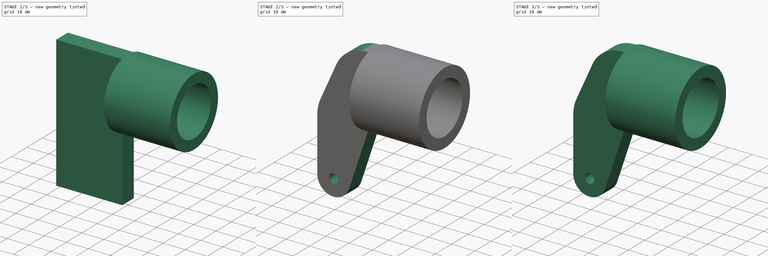
[diagram: build sequence overview — one tinted view per stage of 3, left to right]
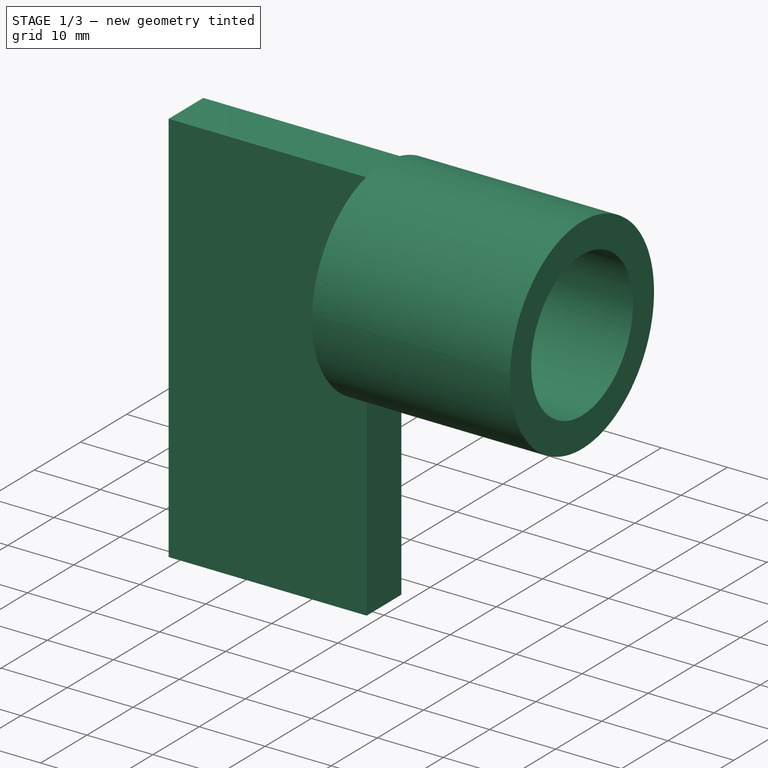
[diagram: stage 1 of 3 — iso view after this stage's code; geometry added in this stage tinted green]
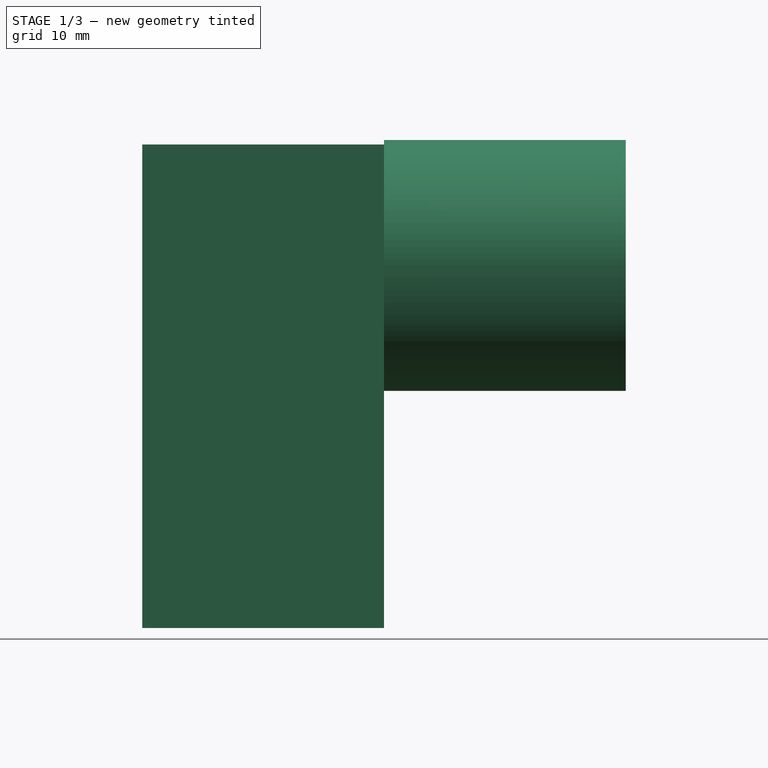
[diagram: stage 1 of 3 — front view after this stage's code; geometry added in this stage tinted green]
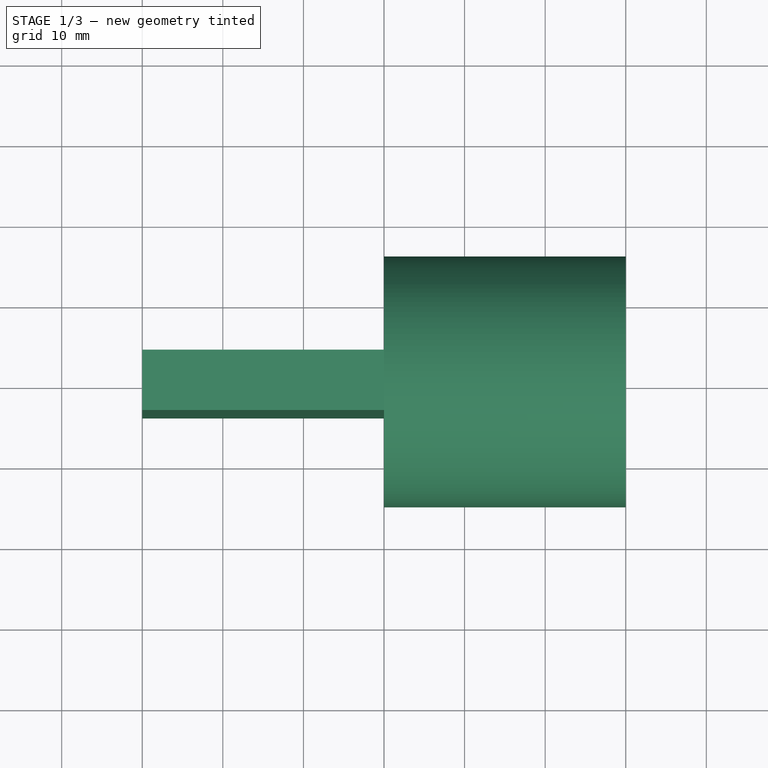
[diagram: stage 1 of 3 — top view after this stage's code; geometry added in this stage tinted green]
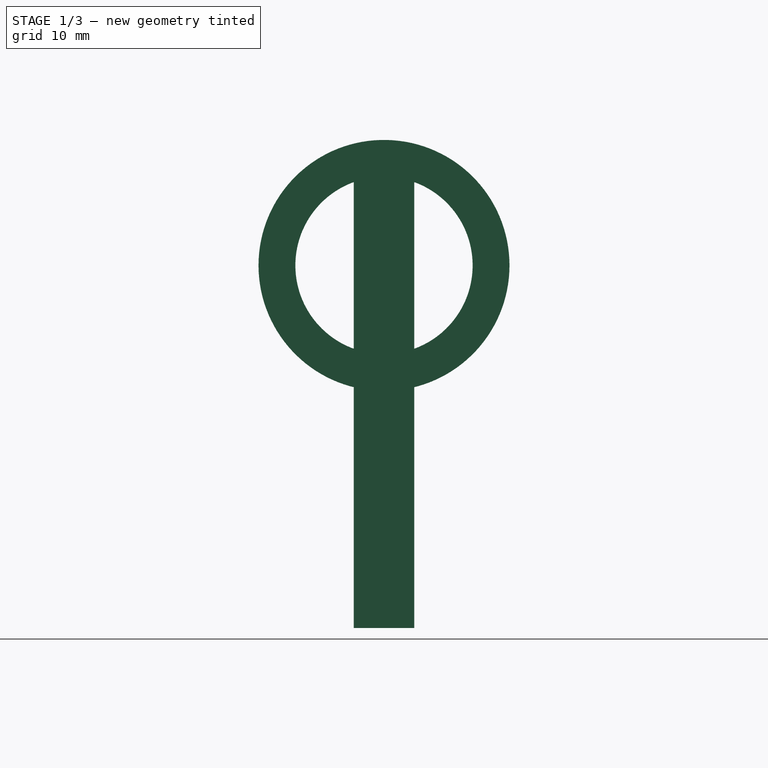
[diagram: stage 1 of 3 — right view after this stage's code; geometry added in this stage tinted green]
FCSTD DOCUMENT  (FreeCAD 0.18.3R)
Label: topcap
License: All rights reserved
LicenseURL: http://en.wikipedia.org/wiki/All_rights_reserved
objects: Part::Extrusion×3, Sketcher::SketchObject×2, Part::Part2DObjectPython×1, Part::MultiCommon×1, Part::MultiFuse×1, PartDesign::FeatureBase×1, PartDesign::Body×1
note: 10 computed .brp shape members not serialized (recipe doc carries the construction recipe); baked Part::Feature solids carry a one-line shape summary decoded from their .brp

FEATURE [Part::Extrusion] Extrude003
  Base = -> Rectangle001
  Dir = (0,0,60)
  DirMode = 0
  FaceMakerClass = Part::FaceMakerExtrusion
  LengthFwd = 0
  LengthRev = 0
  Placement = pos=(1.33e-14,0,-30) rot=(0,0,1;0rad)
  Solid = false
  Symmetric = false
FEATURE [Sketcher::SketchObject] Sketch001
  MapMode = 5
  Placement = pos=(0,0,0) rot=(0.57735,0.57735,0.57735;2.0944rad)
  Support = -> [YZ_Plane]
  sketch-geometry (2):
    g0: Circle CenterX=0 CenterY=0 CenterZ=0 NormalX=0 NormalY=0 NormalZ=1 AngleXU=0 Radius=11
    g1: Circle CenterX=0 CenterY=0 CenterZ=0 NormalX=0 NormalY=0 NormalZ=1 AngleXU=0 Radius=15.5727
  constraints (3):
    c: Coincident(g0,g-1)
    c: Diameter(g0) = 22
    c: Coincident(g1,g0)
FEATURE [Part::Extrusion] Extrude
  Base = -> Sketch001
  Dir = (1,0,0)
  DirMode = 0
  FaceMakerClass = Part::FaceMakerBullseye
  LengthFwd = 30
  LengthRev = 0
  Solid = true
  Symmetric = false
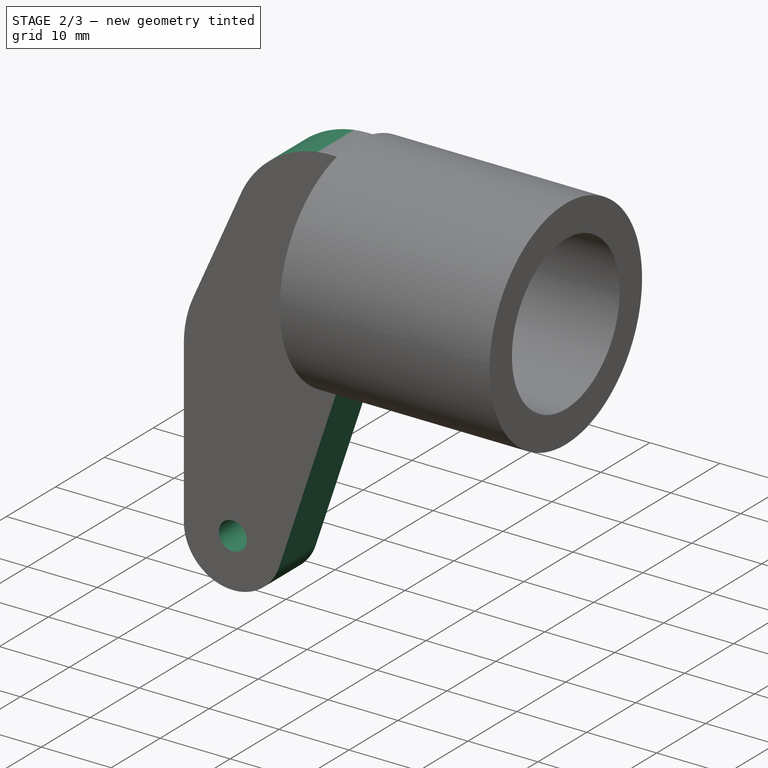
[diagram: stage 2 of 3 — iso view after this stage's code; geometry added in this stage tinted green]
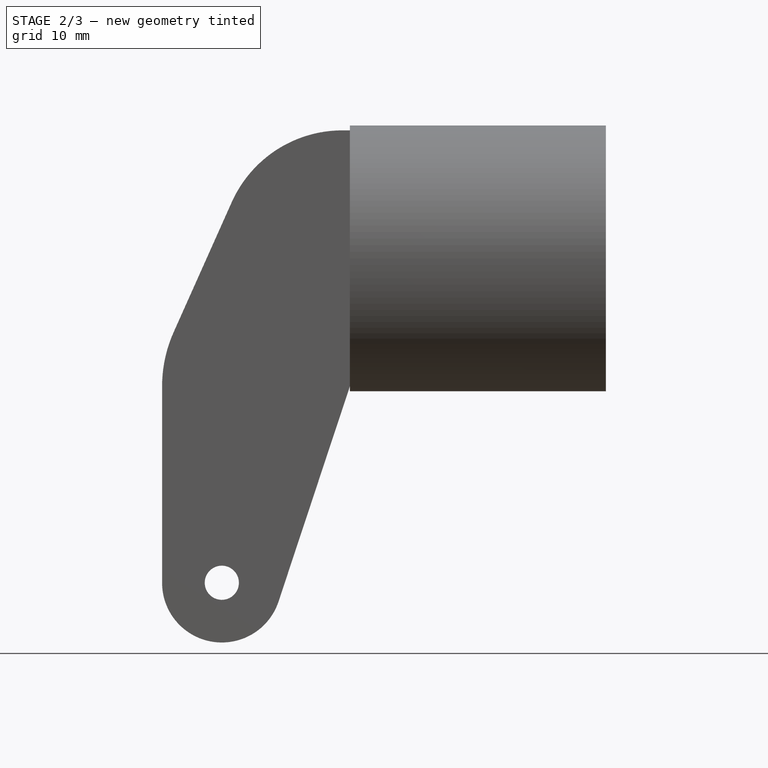
[diagram: stage 2 of 3 — front view after this stage's code; geometry added in this stage tinted green]
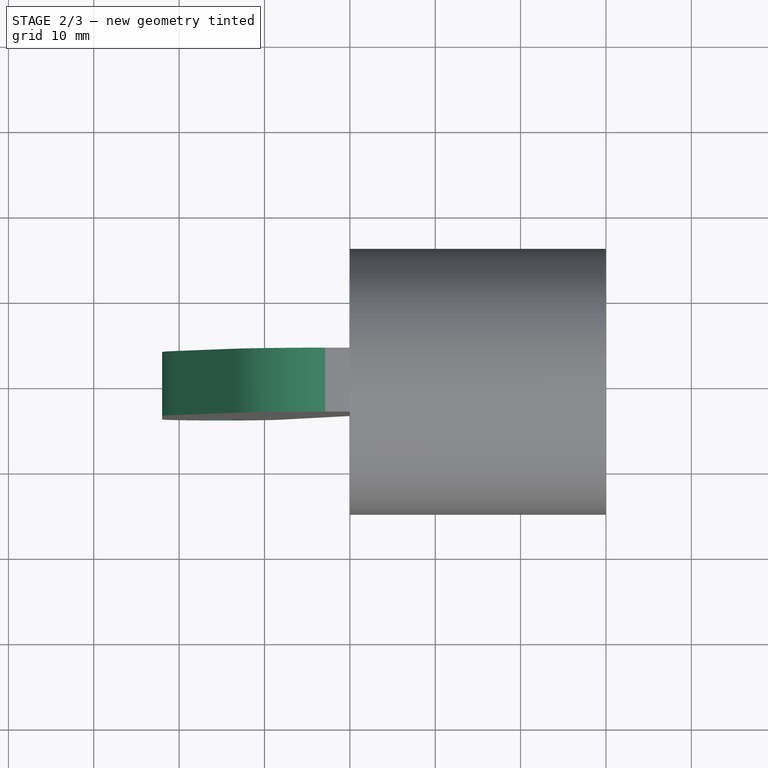
[diagram: stage 2 of 3 — top view after this stage's code; geometry added in this stage tinted green]
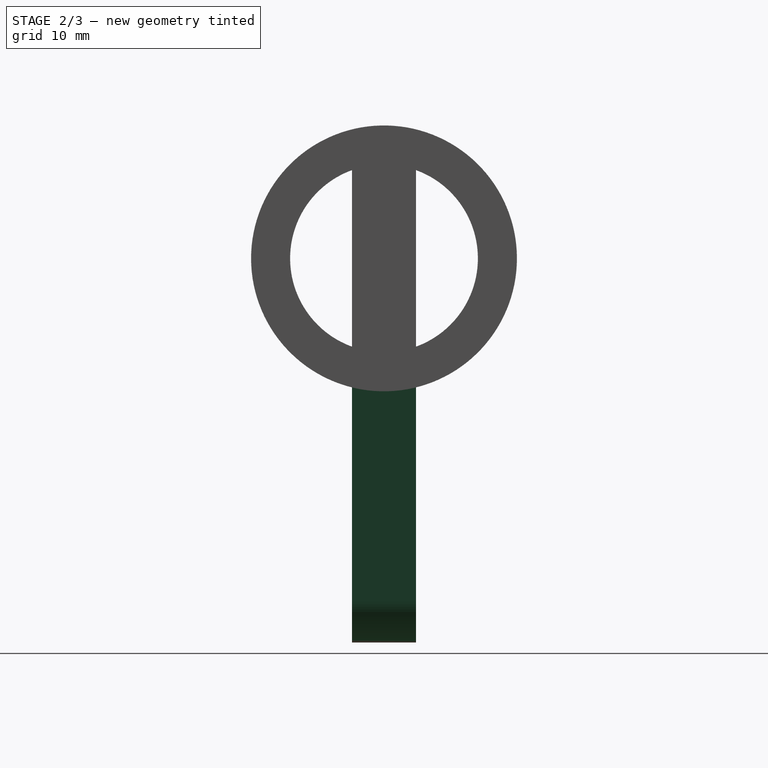
[diagram: stage 2 of 3 — right view after this stage's code; geometry added in this stage tinted green]
FEATURE [Part::Part2DObjectPython] Rectangle001  label="cutout"  # Draft 2D object (typed FeaturePython)
  ChamferSize = 0
  Columns = 1
  FilletRadius = 0
  Height = 7.5
  Length = 30
  MakeFace = true
  MapMode = 5
  Placement = pos=(-30,-3.75,-15) rot=(0,0,1;0rad)
  Rows = 1
FEATURE [Sketcher::SketchObject] Sketch
  MapMode = 5
  Placement = pos=(0,0,-15) rot=(1,0,0;1.5708rad)
  sketch-geometry (10):
    g0: LineSegment StartX=-22 StartY=-23 StartZ=0 EndX=-22 EndY=0 EndZ=0
    g1: LineSegment StartX=-8.35564 StartY=-25.2028 StartZ=0 EndX=0 EndY=0 EndZ=0
    g2: LineSegment [constr] StartX=-22 StartY=0 StartZ=0 EndX=0 EndY=0 EndZ=0
    g3: Circle CenterX=-15 CenterY=-23 CenterZ=0 NormalX=0 NormalY=0 NormalZ=1 AngleXU=0 Radius=2
    g4: ArcOfCircle CenterX=-15 CenterY=-23 CenterZ=0 NormalX=0 NormalY=0 NormalZ=1 AngleXU=0 Radius=7 StartAngle=3.14159 EndAngle=5.96305
    g5: LineSegment StartX=-20.6449 StartY=6.35305 StartZ=0 EndX=-13.8342 EndY=21.5924 EndZ=0
    g6: LineSegment StartX=0 StartY=30 StartZ=0 EndX=0 EndY=0 EndZ=0
    g7: LineSegment StartX=-0.867585 StartY=30 StartZ=0 EndX=0 EndY=30 EndZ=0
    g8: ArcOfCircle CenterX=-0.867585 CenterY=15.7974 CenterZ=0 NormalX=0 NormalY=0 NormalZ=1 AngleXU=0 Radius=14.2026 StartAngle=1.5708 EndAngle=2.7213
    g9: ArcOfCircle CenterX=-6.42973 CenterY=-1.9e-15 CenterZ=0 NormalX=0 NormalY=0 NormalZ=1 AngleXU=0 Radius=15.5703 StartAngle=2.7213 EndAngle=3.14159
  constraints (21):
    c: Coincident(g1,g2)
    c: Radius(g3) = 2
    c: Radius(g4) = 7
    c: Coincident(g3,g4)
    c: Tangent(g0,g4) = 1.5708
    c: Tangent(g1,g4) = -1.5708
    c: Coincident(g1,g-1)
    c: Distance(g3,g2) = 23
    c: Horizontal(g2)
    c: Vertical(g0)
    c: Distance(g2) = 22
    c: Coincident(g6,g1)
    c: Vertical(g6)
    c: Distance(g6) = 30
    c: Coincident(g7,g6)
    c: Horizontal(g7)
    c: Tangent(g5,g8) = 1.5708
    c: Tangent(g7,g8) = 1.5708
    c: Tangent(g0,g9) = 1.5708
    c: Tangent(g5,g9) = 1.5708
    c: Coincident(g0,g2)
FEATURE [Part::Extrusion] Extrude002
  Base = -> Sketch
  Dir = (0,15,0)
  DirMode = 0
  FaceMakerClass = Part::FaceMakerExtrusion
  LengthFwd = 0
  LengthRev = 0
  Placement = pos=(0,-7.5,0) rot=(0,0,1;0rad)
  Solid = true
  Symmetric = false
FEATURE [Part::MultiCommon] Common
  Shapes = -> [Extrude002,Extrude003]
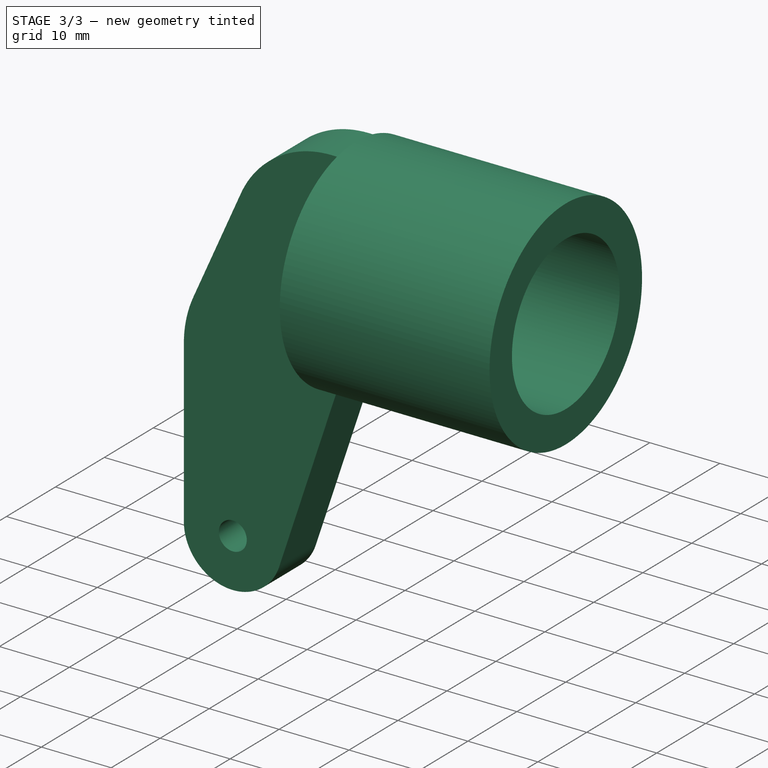
[diagram: stage 3 of 3 — iso view after this stage's code; geometry added in this stage tinted green]
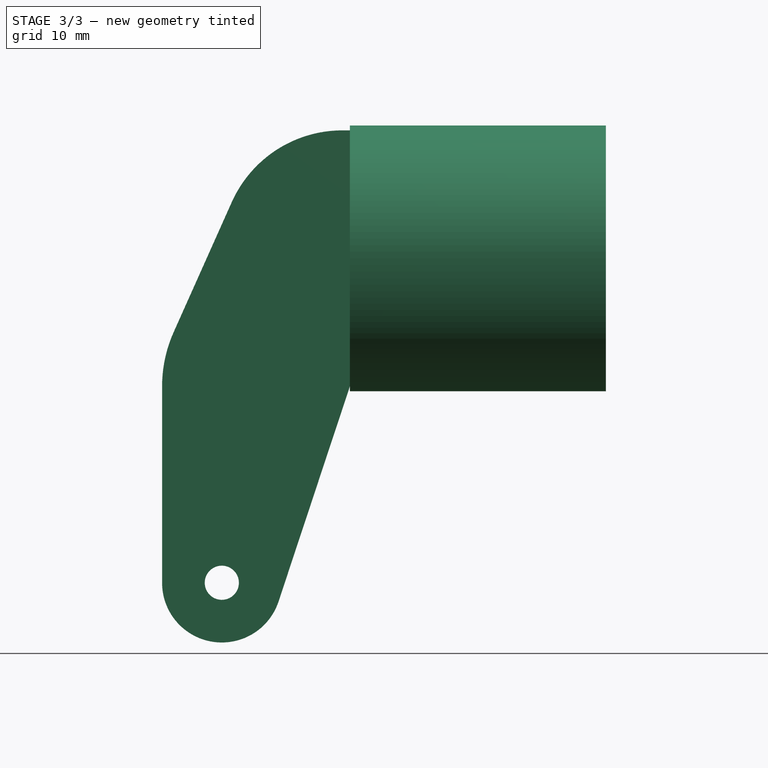
[diagram: stage 3 of 3 — front view after this stage's code; geometry added in this stage tinted green]
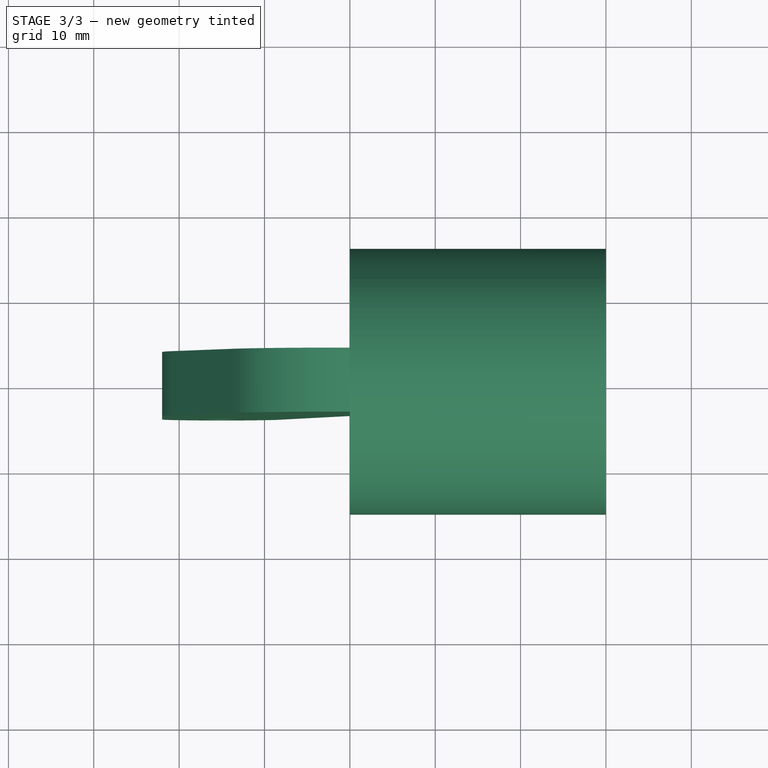
[diagram: stage 3 of 3 — top view after this stage's code; geometry added in this stage tinted green]
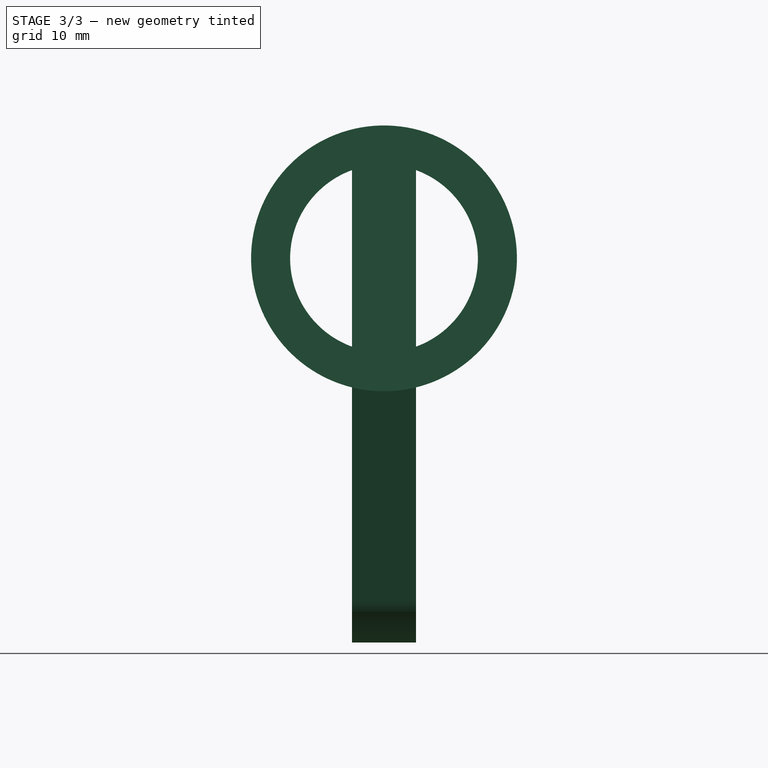
[diagram: stage 3 of 3 — right view after this stage's code; geometry added in this stage tinted green]
FEATURE [Part::MultiFuse] Fusion
  Shapes = -> [Extrude,Common]
FEATURE [PartDesign::FeatureBase] BaseFeature
  BaseFeature = -> Fusion
FEATURE [PartDesign::Body] Body
  BaseFeature = -> Fusion
  Group = -> [BaseFeature,Sketch001]
  Origin = -> Origin
  Tip = -> BaseFeature
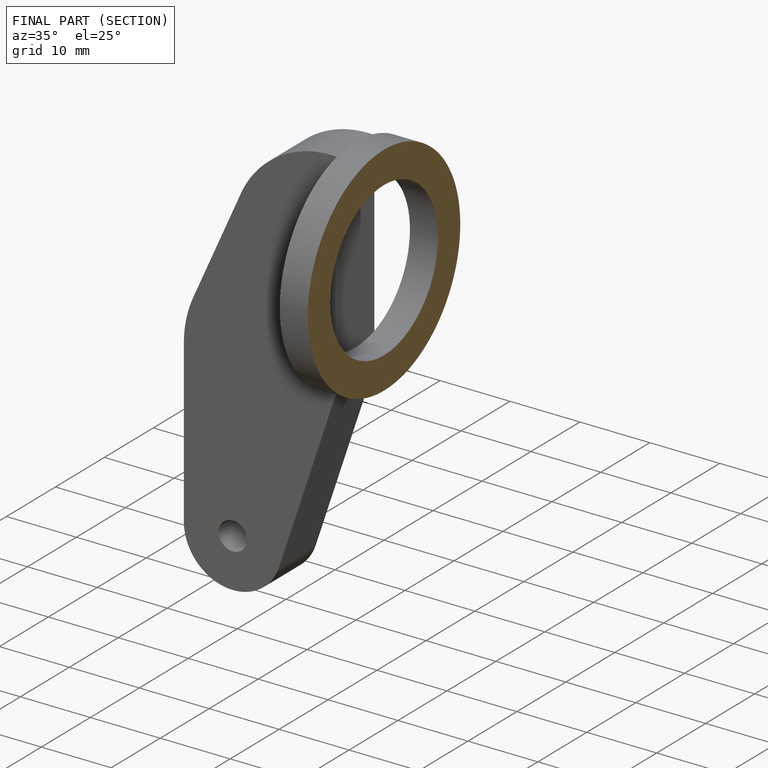
[diagram: finished part — half-section view (interior)]
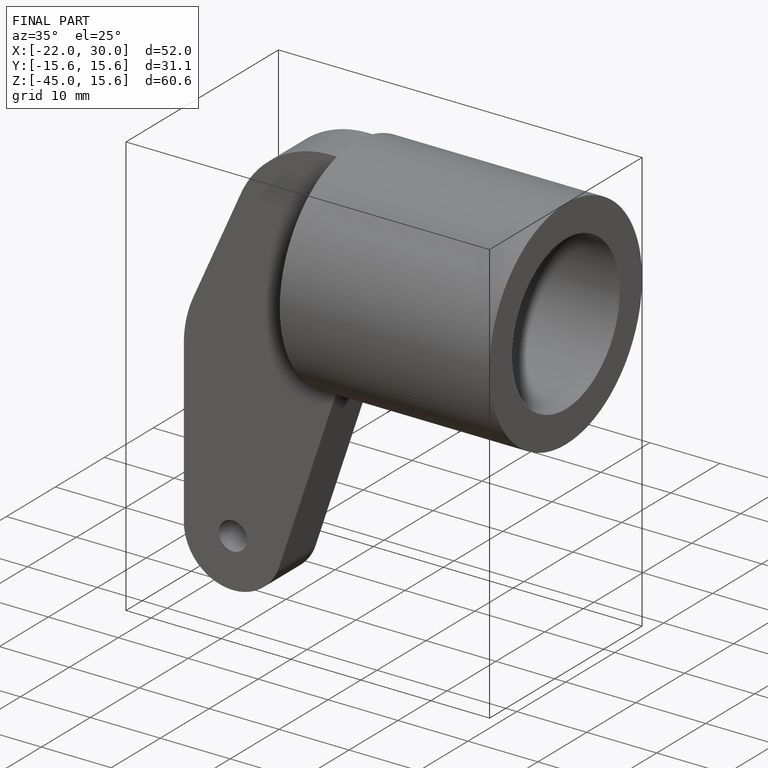
[diagram: finished part — iso view with bounding-box wireframe]
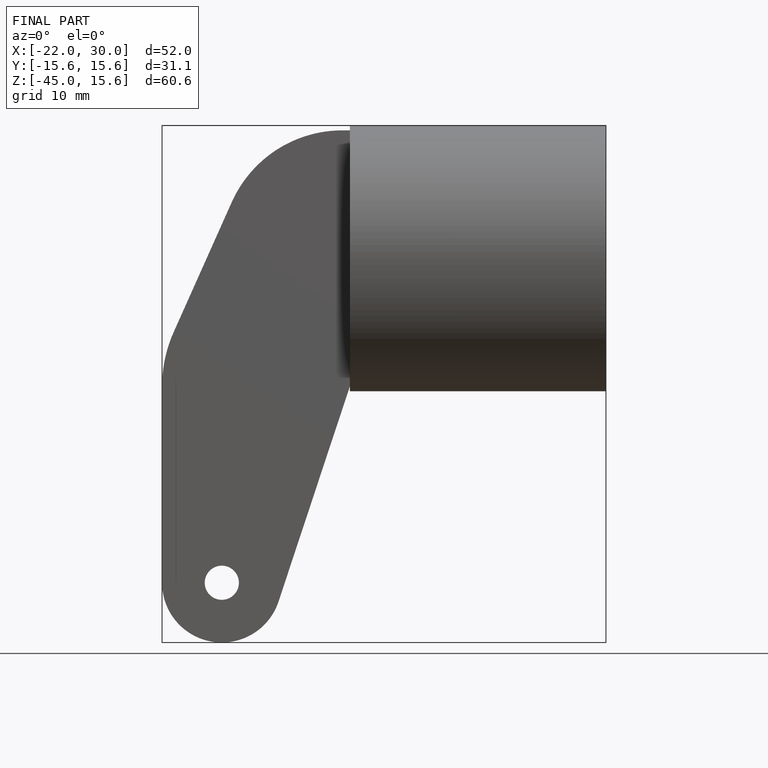
[diagram: finished part — front view with bounding-box wireframe]
